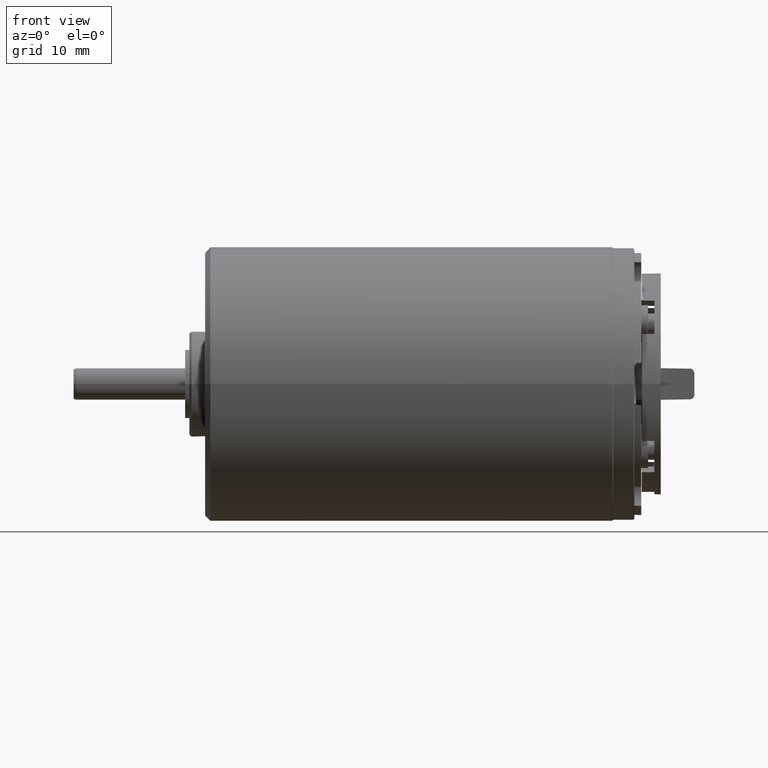
[diagram: clean part render]
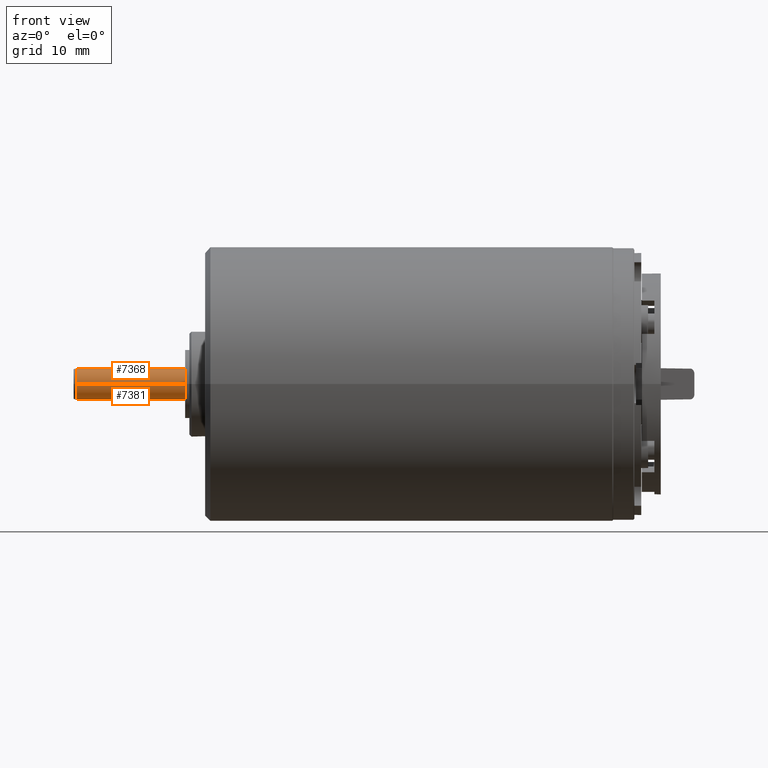
[diagram: same view with one multi-face feature highlighted, each face labeled with its STEP entity id]
A machine part, front view. The highlighted faces form ONE feature: a constant-radius fillet chain: 2 tangent blend faces with common blend radius 1.497 mm. The faces share edges in the B-rep.
Their STEP definitions:
[1] entity #7381 (Cylinder):
#2330=CARTESIAN_POINT('',(-2.155E1,0.E0,0.E0));
#2331=DIRECTION('',(1.E0,0.E0,0.E0));
#2332=DIRECTION('',(0.E0,-1.E0,0.E0));
#2333=AXIS2_PLACEMENT_3D('',#2330,#2331,#2332);
#2335=DIRECTION('',(-1.E0,2.259660817429E-14,0.E0));
#2336=VECTOR('',#2335,1.032760660256E1);
#2337=CARTESIAN_POINT('',(-2.155E1,1.496987298108E0,0.E0));
#2338=LINE('',#2337,#2336);
#2339=DIRECTION('',(1.E0,2.259660817429E-14,0.E0));
#2340=VECTOR('',#2339,1.032760660256E1);
#2341=CARTESIAN_POINT('',(-3.187760660256E1,-1.496987298108E0,0.E0));
#2342=LINE('',#2341,#2340);
#2343=CARTESIAN_POINT('',(-3.187760660256E1,0.E0,0.E0));
#2344=DIRECTION('',(1.E0,0.E0,0.E0));
#2345=DIRECTION('',(0.E0,-1.E0,0.E0));
#2346=AXIS2_PLACEMENT_3D('',#2343,#2344,#2345);
#4443=CARTESIAN_POINT('',(-3.187760660256E1,1.496987298108E0,0.E0));
#4445=VERTEX_POINT('',#4443);
#4446=CARTESIAN_POINT('',(-3.187760660256E1,-1.496987298108E0,0.E0));
#4448=VERTEX_POINT('',#4446);
#4566=CARTESIAN_POINT('',(-2.155E1,1.496987298108E0,0.E0));
#4567=CARTESIAN_POINT('',(-2.155E1,-1.496987298108E0,0.E0));
#4568=VERTEX_POINT('',#4566);
#4569=VERTEX_POINT('',#4567);
#7369=CARTESIAN_POINT('',(-3.278871086667E1,0.E0,0.E0));
#7370=DIRECTION('',(1.E0,0.E0,0.E0));
#7371=DIRECTION('',(0.E0,-1.E0,0.E0));
#7372=AXIS2_PLACEMENT_3D('',#7369,#7370,#7371);
#7373=CYLINDRICAL_SURFACE('',#7372,1.496987298108E0);
#7374=ORIENTED_EDGE('',*,*,#7349,.T.);
#7375=ORIENTED_EDGE('',*,*,#7364,.T.);
#7377=ORIENTED_EDGE('',*,*,#7376,.F.);
#7378=ORIENTED_EDGE('',*,*,#7360,.T.);
#7379=EDGE_LOOP('',(#7374,#7375,#7377,#7378));
#7380=FACE_OUTER_BOUND('',#7379,.F.);
#7381=ADVANCED_FACE('',(#7380),#7373,.T.);
#2334=CIRCLE('',#2333,1.496987298108E0);
#2347=CIRCLE('',#2346,1.496987298108E0);
#7349=EDGE_CURVE('',#4569,#4568,#2334,.T.);
#7360=EDGE_CURVE('',#4448,#4569,#2342,.T.);
#7364=EDGE_CURVE('',#4568,#4445,#2338,.T.);
#7376=EDGE_CURVE('',#4448,#4445,#2347,.T.);
[2] entity #7368 (Cylinder):
#2325=CARTESIAN_POINT('',(-2.155E1,0.E0,0.E0));
#2326=DIRECTION('',(1.E0,0.E0,0.E0));
#2327=DIRECTION('',(0.E0,1.E0,0.E0));
#2328=AXIS2_PLACEMENT_3D('',#2325,#2326,#2327);
#2335=DIRECTION('',(-1.E0,2.259660817429E-14,0.E0));
#2336=VECTOR('',#2335,1.032760660256E1);
#2337=CARTESIAN_POINT('',(-2.155E1,1.496987298108E0,0.E0));
#2338=LINE('',#2337,#2336);
#2339=DIRECTION('',(1.E0,2.259660817429E-14,0.E0));
#2340=VECTOR('',#2339,1.032760660256E1);
#2341=CARTESIAN_POINT('',(-3.187760660256E1,-1.496987298108E0,0.E0));
#2342=LINE('',#2341,#2340);
#2353=CARTESIAN_POINT('',(-3.187760660256E1,0.E0,0.E0));
#2354=DIRECTION('',(1.E0,0.E0,0.E0));
#2355=DIRECTION('',(0.E0,1.E0,0.E0));
#2356=AXIS2_PLACEMENT_3D('',#2353,#2354,#2355);
#4443=CARTESIAN_POINT('',(-3.187760660256E1,1.496987298108E0,0.E0));
#4445=VERTEX_POINT('',#4443);
#4446=CARTESIAN_POINT('',(-3.187760660256E1,-1.496987298108E0,0.E0));
#4448=VERTEX_POINT('',#4446);
#4566=CARTESIAN_POINT('',(-2.155E1,1.496987298108E0,0.E0));
#4567=CARTESIAN_POINT('',(-2.155E1,-1.496987298108E0,0.E0));
#4568=VERTEX_POINT('',#4566);
#4569=VERTEX_POINT('',#4567);
#7354=CARTESIAN_POINT('',(-3.278871086667E1,0.E0,0.E0));
#7355=DIRECTION('',(1.E0,0.E0,0.E0));
#7356=DIRECTION('',(0.E0,-1.E0,0.E0));
#7357=AXIS2_PLACEMENT_3D('',#7354,#7355,#7356);
#7358=CYLINDRICAL_SURFACE('',#7357,1.496987298108E0);
#7359=ORIENTED_EDGE('',*,*,#7347,.T.);
#7361=ORIENTED_EDGE('',*,*,#7360,.F.);
#7363=ORIENTED_EDGE('',*,*,#7362,.F.);
#7365=ORIENTED_EDGE('',*,*,#7364,.F.);
#7366=EDGE_LOOP('',(#7359,#7361,#7363,#7365));
#7367=FACE_OUTER_BOUND('',#7366,.F.);
#7368=ADVANCED_FACE('',(#7367),#7358,.T.);
#2329=CIRCLE('',#2328,1.496987298108E0);
#2357=CIRCLE('',#2356,1.496987298108E0);
#7347=EDGE_CURVE('',#4568,#4569,#2329,.T.);
#7360=EDGE_CURVE('',#4448,#4569,#2342,.T.);
#7362=EDGE_CURVE('',#4445,#4448,#2357,.T.);
#7364=EDGE_CURVE('',#4568,#4445,#2338,.T.);